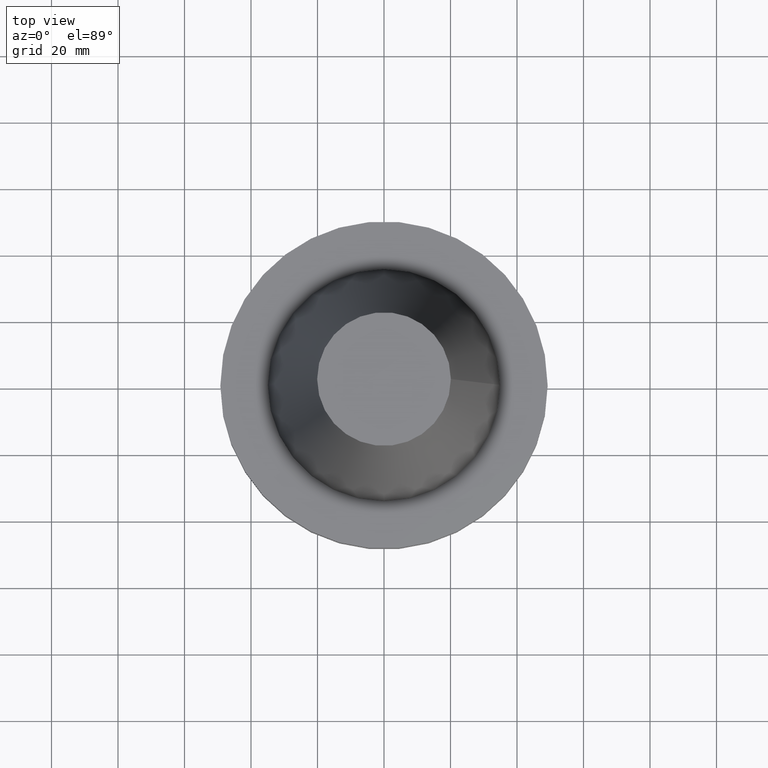
[diagram: clean part render]
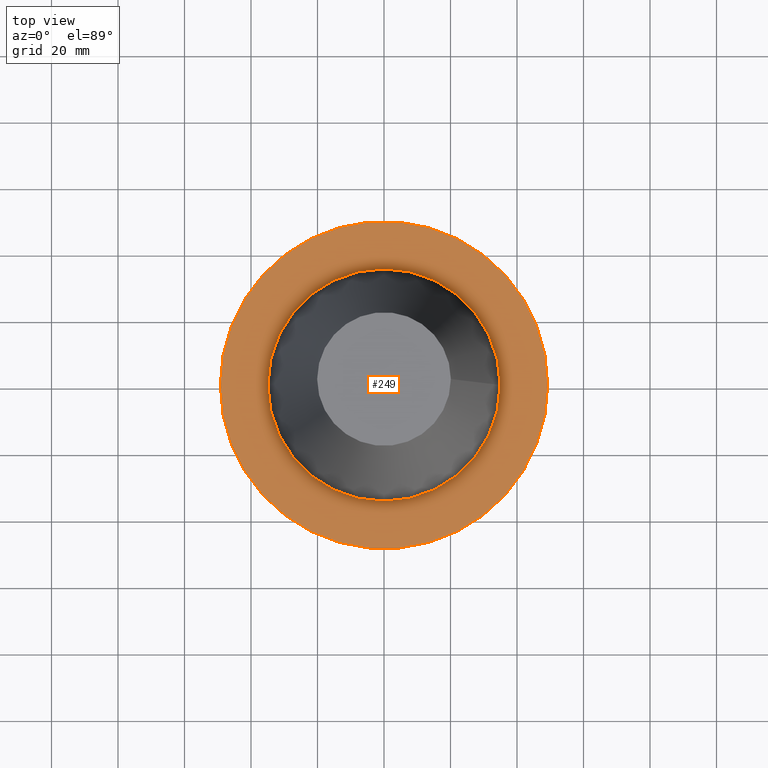
[diagram: same view with one face highlighted and labeled with its STEP entity id]
A machine part, top view. The second image highlights one B-rep face of the part: STEP entity #249.
In plain terms, the highlighted planar face has unit normal (0, 0, -1).
Its self-contained STEP definition (entity closure, byte-faithful):
#16 = AXIS2_PLACEMENT_3D ( 'NONE', #381, #241, #265 ) ;
#33 = CIRCLE ( 'NONE', #383, 34.92499999999999005 ) ;
#48 = EDGE_CURVE ( 'NONE', #60, #60, #390, .T. ) ;
#60 = VERTEX_POINT ( 'NONE', #82 ) ;
#72 = DIRECTION ( 'NONE',  ( 1.000000000000000000, 0.000000000000000000, 0.000000000000000000 ) ) ;
#82 = CARTESIAN_POINT ( 'NONE',  ( 49.21499999999999631, 0.000000000000000000, -1.499999999999987566 ) ) ;
#83 = CARTESIAN_POINT ( 'NONE',  ( 34.92499999999999005, 0.000000000000000000, -1.499999999999987566 ) ) ;
#105 = PLANE ( 'NONE',  #146 ) ;
#108 = DIRECTION ( 'NONE',  ( 0.000000000000000000, 0.000000000000000000, -1.000000000000000000 ) ) ;
#112 = VERTEX_POINT ( 'NONE', #83 ) ;
#134 = EDGE_LOOP ( 'NONE', ( #253 ) ) ;
#146 = AXIS2_PLACEMENT_3D ( 'NONE', #289, #108, #355 ) ;
#164 = FACE_BOUND ( 'NONE', #256, .T. ) ;
#233 = DIRECTION ( 'NONE',  ( -0.000000000000000000, -0.000000000000000000, 1.000000000000000000 ) ) ;
#241 = DIRECTION ( 'NONE',  ( -0.000000000000000000, -0.000000000000000000, 1.000000000000000000 ) ) ;
#249 = ADVANCED_FACE ( 'NONE', ( #164, #351 ), #105, .F. ) ;
#253 = ORIENTED_EDGE ( 'NONE', *, *, #48, .T. ) ;
#256 = EDGE_LOOP ( 'NONE', ( #291 ) ) ;
#262 = EDGE_CURVE ( 'NONE', #112, #112, #33, .T. ) ;
#265 = DIRECTION ( 'NONE',  ( 1.000000000000000000, 0.000000000000000000, 0.000000000000000000 ) ) ;
#289 = CARTESIAN_POINT ( 'NONE',  ( 0.000000000000000000, 49.21499999999999631, -1.499999999999992895 ) ) ;
#291 = ORIENTED_EDGE ( 'NONE', *, *, #262, .F. ) ;
#348 = CARTESIAN_POINT ( 'NONE',  ( 0.000000000000000000, 0.000000000000000000, -1.499999999999987566 ) ) ;
#351 = FACE_OUTER_BOUND ( 'NONE', #134, .T. ) ;
#355 = DIRECTION ( 'NONE',  ( -1.000000000000000000, 0.000000000000000000, -0.000000000000000000 ) ) ;
#381 = CARTESIAN_POINT ( 'NONE',  ( 0.000000000000000000, 0.000000000000000000, -1.499999999999987566 ) ) ;
#383 = AXIS2_PLACEMENT_3D ( 'NONE', #348, #233, #72 ) ;
#390 = CIRCLE ( 'NONE', #16, 49.21499999999999631 ) ;